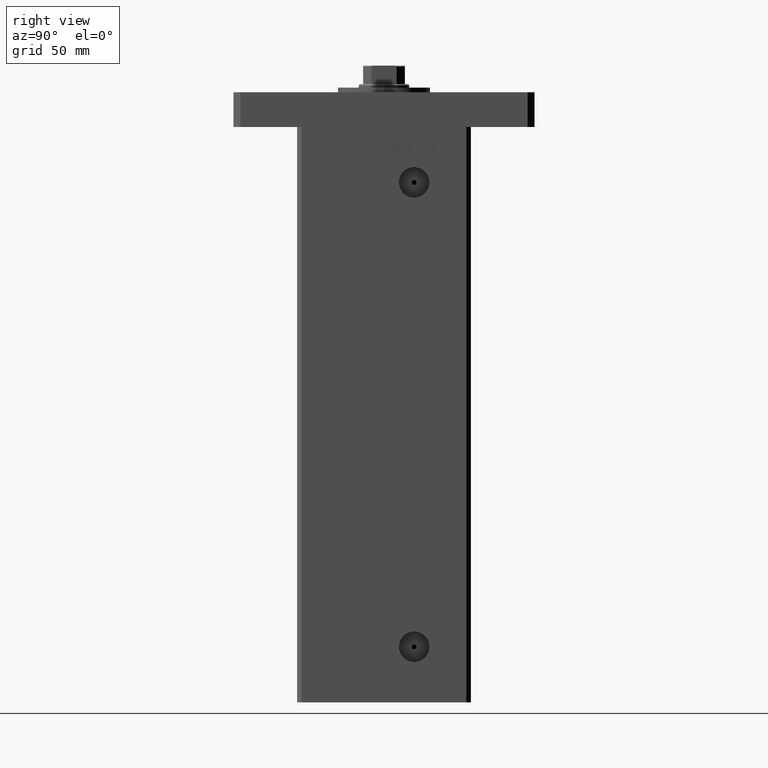
[diagram: clean part render]
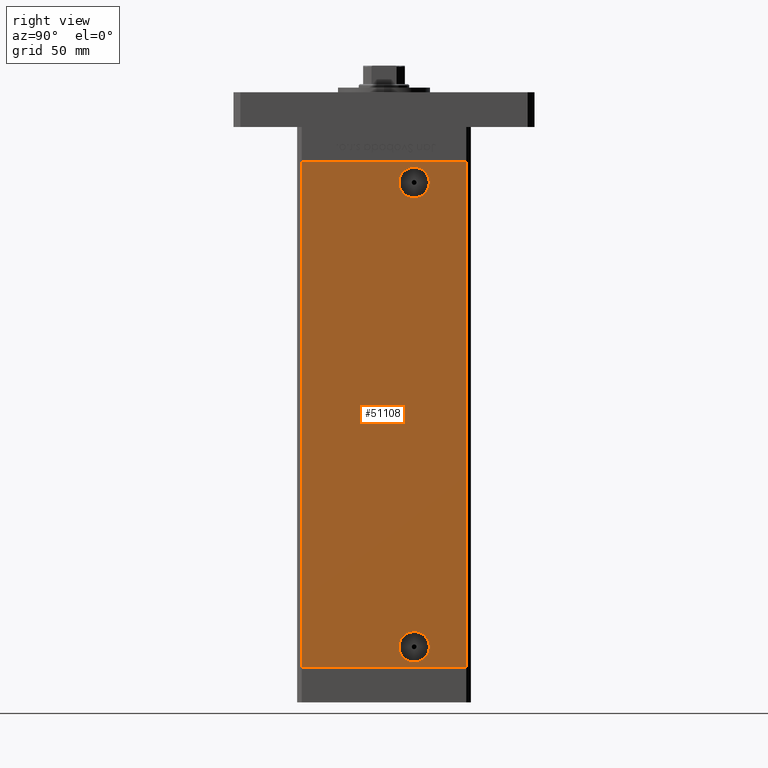
[diagram: same view with one face highlighted and labeled with its STEP entity id]
A machine part, right view. The second image highlights one B-rep face of the part: STEP entity #51108.
In plain terms, the highlighted planar face has unit normal (1, -0, 0).
Its self-contained STEP definition (entity closure, byte-faithful):
#881 = EDGE_CURVE ( 'NONE', #42566, #46931, #30078, .T. ) ;
#1246 = VERTEX_POINT ( 'NONE', #43674 ) ;
#1606 = DIRECTION ( 'NONE',  ( 1.000000000000000000, -2.275047181608927644E-16, 0.000000000000000000 ) ) ;
#2026 = CARTESIAN_POINT ( 'NONE',  ( 42.49999999999999289, 19.57999999999999829, 9.000000000000000000 ) ) ;
#2145 = LINE ( 'NONE', #14624, #23054 ) ;
#3751 = DIRECTION ( 'NONE',  ( 2.931927001650941360E-16, 1.000000000000000000, 0.000000000000000000 ) ) ;
#3797 = LINE ( 'NONE', #20856, #44169 ) ;
#4893 = ORIENTED_EDGE ( 'NONE', *, *, #46385, .F. ) ;
#7369 = CARTESIAN_POINT ( 'NONE',  ( 42.49999999999999289, 13.00000000000000000, 209.5000000000000000 ) ) ;
#8859 = DIRECTION ( 'NONE',  ( 1.000000000000000000, -2.275047181608927644E-16, 0.000000000000000000 ) ) ;
#9004 = EDGE_CURVE ( 'NONE', #22837, #32292, #30351, .T. ) ;
#11881 = FACE_OUTER_BOUND ( 'NONE', #34076, .T. ) ;
#12089 = DIRECTION ( 'NONE',  ( 0.000000000000000000, 1.000000000000000000, 0.000000000000000000 ) ) ;
#12945 = PLANE ( 'NONE',  #27333 ) ;
#13155 = CARTESIAN_POINT ( 'NONE',  ( 42.49999999999999289, 19.58000000000001251, 209.5000000000000000 ) ) ;
#13700 = CARTESIAN_POINT ( 'NONE',  ( 42.49999999999999289, 13.00000000000000000, 209.5000000000000000 ) ) ;
#13864 = EDGE_LOOP ( 'NONE', ( #4893, #28739 ) ) ;
#14624 = CARTESIAN_POINT ( 'NONE',  ( 42.50000000000000711, 35.50000000000001421, 218.5000000000000000 ) ) ;
#17095 = ORIENTED_EDGE ( 'NONE', *, *, #881, .F. ) ;
#17506 = DIRECTION ( 'NONE',  ( -2.931927001650941360E-16, -1.000000000000000000, 0.000000000000000000 ) ) ;
#17779 = AXIS2_PLACEMENT_3D ( 'NONE', #38452, #1606, #34406 ) ;
#18241 = AXIS2_PLACEMENT_3D ( 'NONE', #51922, #24806, #12089 ) ;
#18977 = CARTESIAN_POINT ( 'NONE',  ( 42.49999999999998579, -35.50000000000000711, 0.000000000000000000 ) ) ;
#19813 = DIRECTION ( 'NONE',  ( 1.000000000000000000, -2.275047181608927644E-16, 0.000000000000000000 ) ) ;
#20856 = CARTESIAN_POINT ( 'NONE',  ( 42.50000000000000711, 35.50000000000001421, 0.000000000000000000 ) ) ;
#21560 = DIRECTION ( 'NONE',  ( 0.000000000000000000, 1.000000000000000000, 0.000000000000000000 ) ) ;
#22384 = ORIENTED_EDGE ( 'NONE', *, *, #33832, .F. ) ;
#22837 = VERTEX_POINT ( 'NONE', #51360 ) ;
#23054 = VECTOR ( 'NONE', #31160, 1000.000000000000000 ) ;
#24798 = AXIS2_PLACEMENT_3D ( 'NONE', #7369, #19813, #40381 ) ;
#24806 = DIRECTION ( 'NONE',  ( 1.000000000000000000, -2.275047181608927644E-16, 0.000000000000000000 ) ) ;
#26909 = ORIENTED_EDGE ( 'NONE', *, *, #30476, .T. ) ;
#27333 = AXIS2_PLACEMENT_3D ( 'NONE', #33279, #29480, #3751 ) ;
#28739 = ORIENTED_EDGE ( 'NONE', *, *, #9004, .F. ) ;
#29258 = VERTEX_POINT ( 'NONE', #44459 ) ;
#29265 = CARTESIAN_POINT ( 'NONE',  ( 42.49999999999999289, 6.419999999999983942, 209.5000000000000000 ) ) ;
#29480 = DIRECTION ( 'NONE',  ( 1.000000000000000000, -2.931927001650941360E-16, 0.000000000000000000 ) ) ;
#30078 = CIRCLE ( 'NONE', #46491, 6.580000000000014282 ) ;
#30087 = CARTESIAN_POINT ( 'NONE',  ( 42.49999999999998579, -35.50000000000000711, 218.5000000000000000 ) ) ;
#30351 = CIRCLE ( 'NONE', #18241, 6.579999999999997407 ) ;
#30476 = EDGE_CURVE ( 'NONE', #29258, #35527, #46480, .T. ) ;
#31160 = DIRECTION ( 'NONE',  ( -0.000000000000000000, -0.000000000000000000, -1.000000000000000000 ) ) ;
#31628 = EDGE_LOOP ( 'NONE', ( #45694, #17095 ) ) ;
#32292 = VERTEX_POINT ( 'NONE', #2026 ) ;
#32569 = ORIENTED_EDGE ( 'NONE', *, *, #48972, .F. ) ;
#33255 = EDGE_CURVE ( 'NONE', #35527, #39208, #41019, .T. ) ;
#33279 = CARTESIAN_POINT ( 'NONE',  ( 42.50000000000000711, 35.50000000000001421, 218.5000000000000000 ) ) ;
#33832 = EDGE_CURVE ( 'NONE', #1246, #39208, #3797, .T. ) ;
#34076 = EDGE_LOOP ( 'NONE', ( #22384, #32569, #26909, #46021 ) ) ;
#34406 = DIRECTION ( 'NONE',  ( 0.000000000000000000, 1.000000000000000000, 0.000000000000000000 ) ) ;
#35527 = VERTEX_POINT ( 'NONE', #30087 ) ;
#37119 = DIRECTION ( 'NONE',  ( -2.931927001650941360E-16, -1.000000000000000000, 0.000000000000000000 ) ) ;
#38085 = VECTOR ( 'NONE', #53226, 1000.000000000000000 ) ;
#38452 = CARTESIAN_POINT ( 'NONE',  ( 42.49999999999999289, 13.00000000000000000, 9.000000000000000000 ) ) ;
#38535 = CIRCLE ( 'NONE', #17779, 6.579999999999997407 ) ;
#39208 = VERTEX_POINT ( 'NONE', #18977 ) ;
#40381 = DIRECTION ( 'NONE',  ( 0.000000000000000000, 1.000000000000000000, 0.000000000000000000 ) ) ;
#41019 = LINE ( 'NONE', #52965, #38085 ) ;
#42566 = VERTEX_POINT ( 'NONE', #29265 ) ;
#42940 = CARTESIAN_POINT ( 'NONE',  ( 42.50000000000000711, 35.50000000000001421, 218.5000000000000000 ) ) ;
#43674 = CARTESIAN_POINT ( 'NONE',  ( 42.50000000000000711, 35.50000000000001421, 0.000000000000000000 ) ) ;
#44169 = VECTOR ( 'NONE', #37119, 1000.000000000000000 ) ;
#44459 = CARTESIAN_POINT ( 'NONE',  ( 42.50000000000000711, 35.50000000000001421, 218.5000000000000000 ) ) ;
#45694 = ORIENTED_EDGE ( 'NONE', *, *, #48722, .F. ) ;
#46021 = ORIENTED_EDGE ( 'NONE', *, *, #33255, .T. ) ;
#46385 = EDGE_CURVE ( 'NONE', #32292, #22837, #38535, .T. ) ;
#46480 = LINE ( 'NONE', #42940, #50964 ) ;
#46491 = AXIS2_PLACEMENT_3D ( 'NONE', #13700, #8859, #21560 ) ;
#46931 = VERTEX_POINT ( 'NONE', #13155 ) ;
#48722 = EDGE_CURVE ( 'NONE', #46931, #42566, #49884, .T. ) ;
#48972 = EDGE_CURVE ( 'NONE', #29258, #1246, #2145, .T. ) ;
#48984 = FACE_BOUND ( 'NONE', #13864, .T. ) ;
#49884 = CIRCLE ( 'NONE', #24798, 6.580000000000014282 ) ;
#50050 = FACE_BOUND ( 'NONE', #31628, .T. ) ;
#50964 = VECTOR ( 'NONE', #17506, 1000.000000000000000 ) ;
#51108 = ADVANCED_FACE ( 'NONE', ( #50050, #48984, #11881 ), #12945, .T. ) ;
#51360 = CARTESIAN_POINT ( 'NONE',  ( 42.49999999999999289, 6.420000000000000817, 9.000000000000000000 ) ) ;
#51922 = CARTESIAN_POINT ( 'NONE',  ( 42.49999999999999289, 13.00000000000000000, 9.000000000000000000 ) ) ;
#52965 = CARTESIAN_POINT ( 'NONE',  ( 42.49999999999998579, -35.50000000000000711, 218.5000000000000000 ) ) ;
#53226 = DIRECTION ( 'NONE',  ( -0.000000000000000000, -0.000000000000000000, -1.000000000000000000 ) ) ;